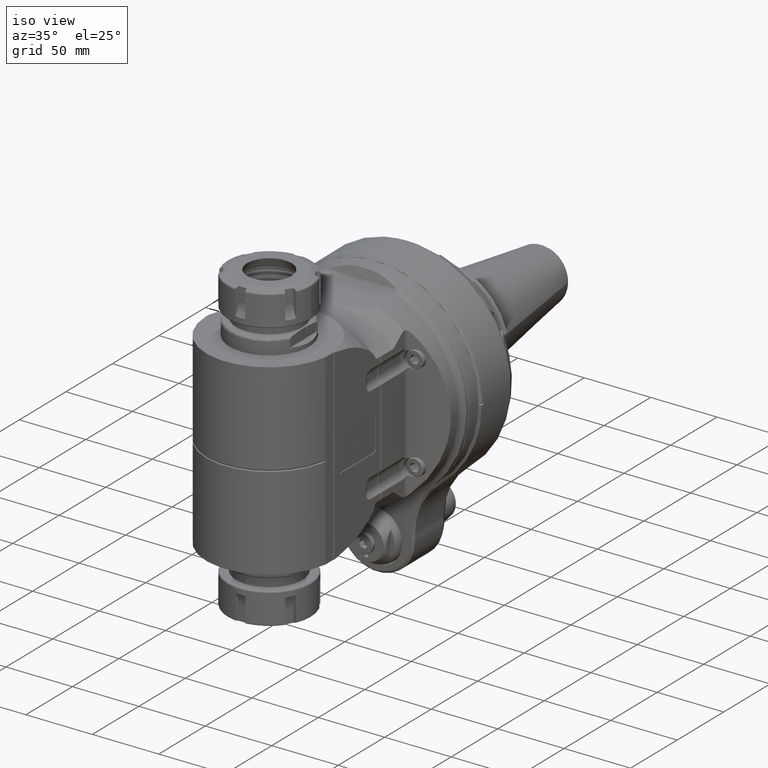
[diagram: clean part render]
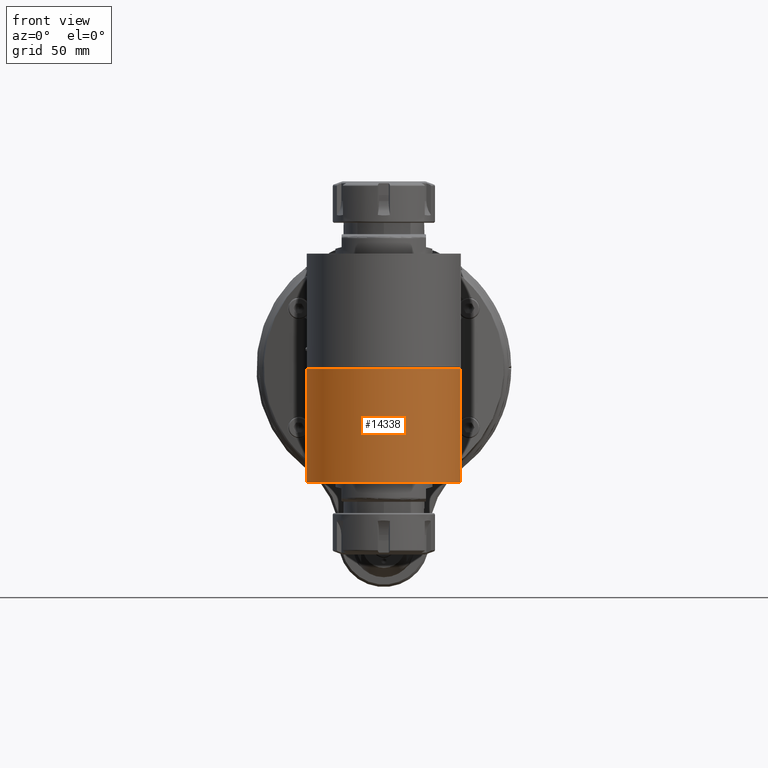
[diagram: tour spotlight — one face highlighted and labeled with its STEP entity id]
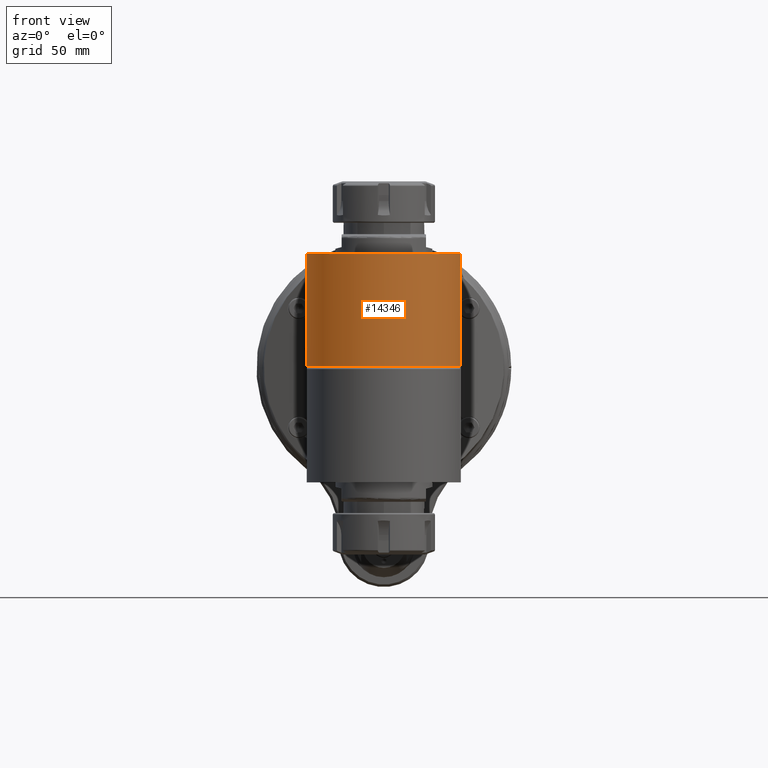
[diagram: tour spotlight — one face highlighted and labeled with its STEP entity id]
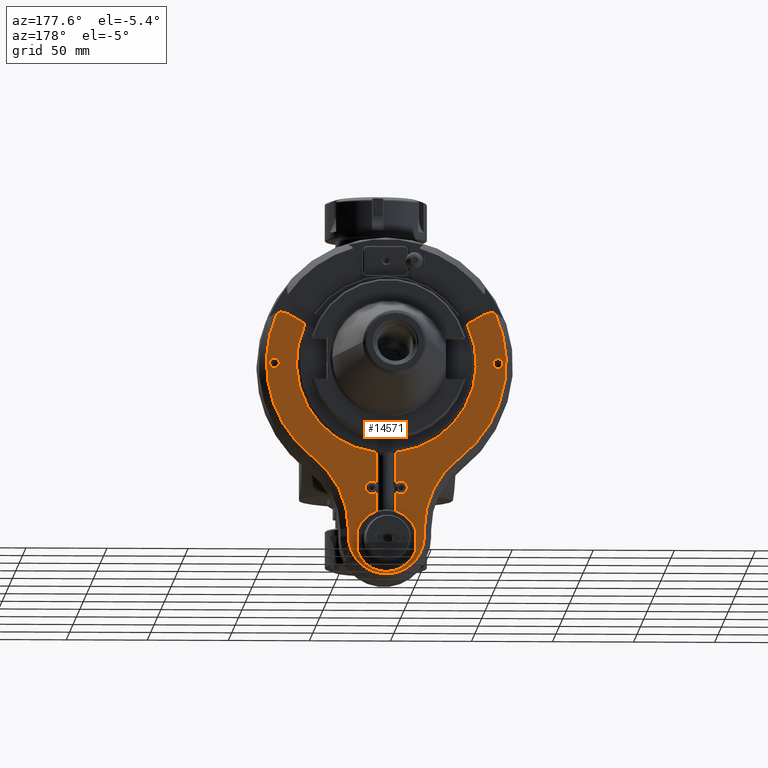
[diagram: tour spotlight — one face highlighted and labeled with its STEP entity id]
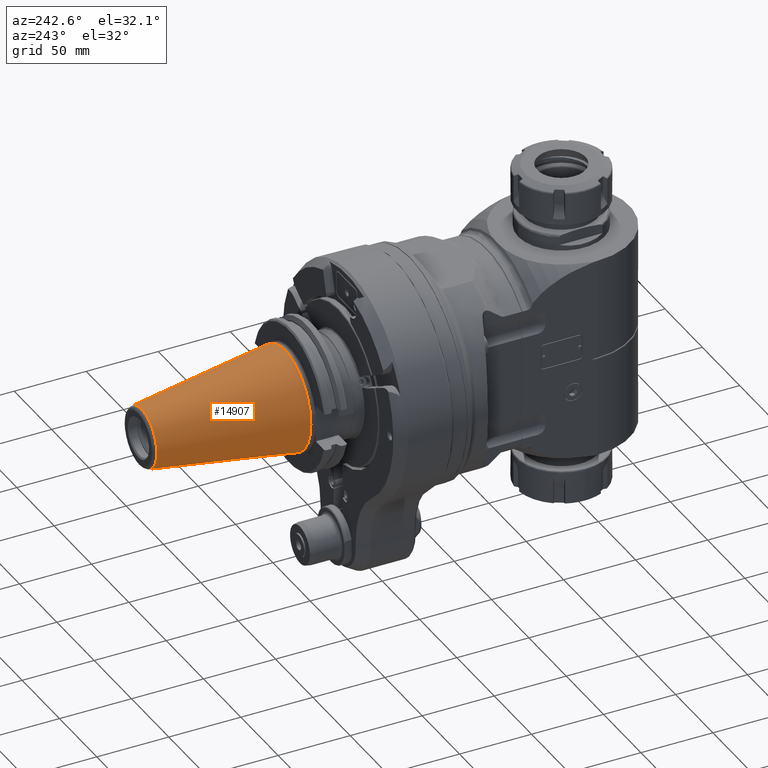
[diagram: tour spotlight — one face highlighted and labeled with its STEP entity id]
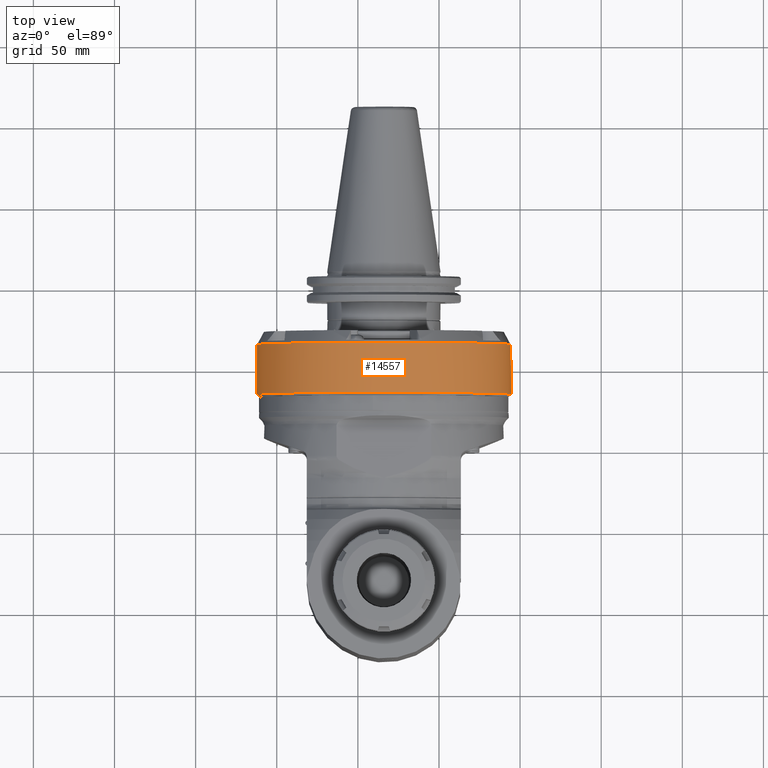
[diagram: tour spotlight — one face highlighted and labeled with its STEP entity id]
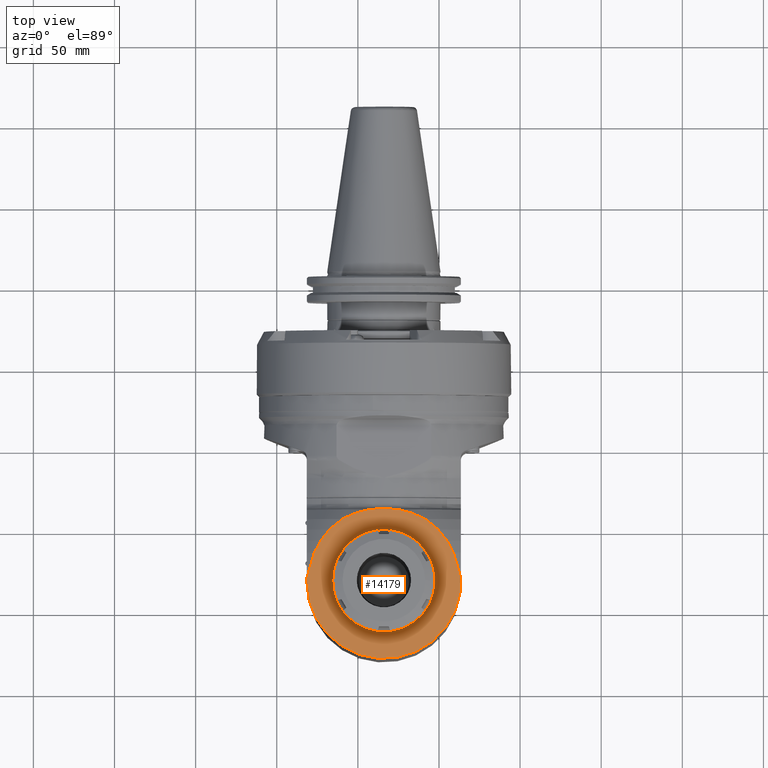
[diagram: tour spotlight — one face highlighted and labeled with its STEP entity id]
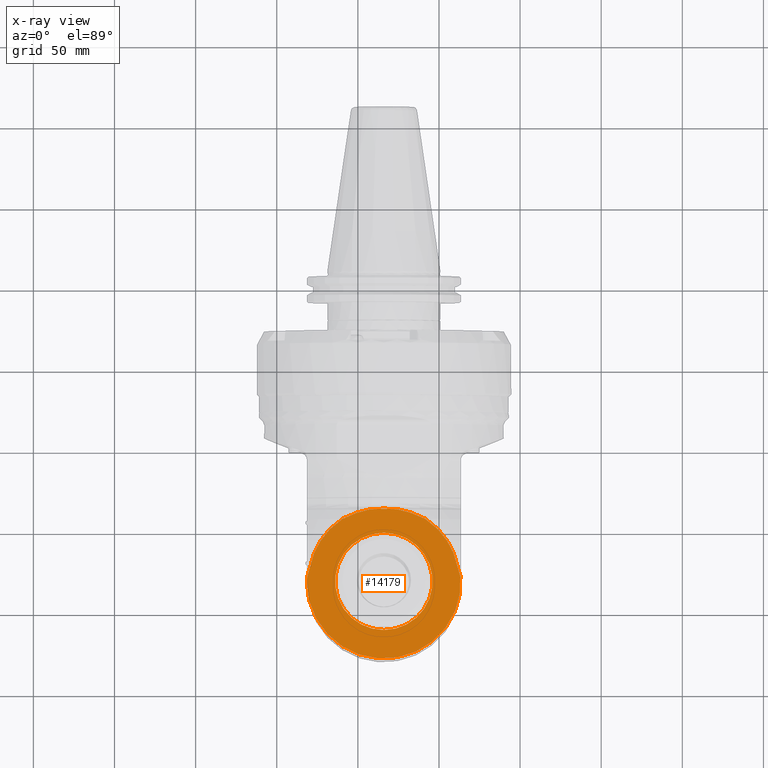
[diagram: x-ray of the same camera — body ghosted, this tour face saturated]
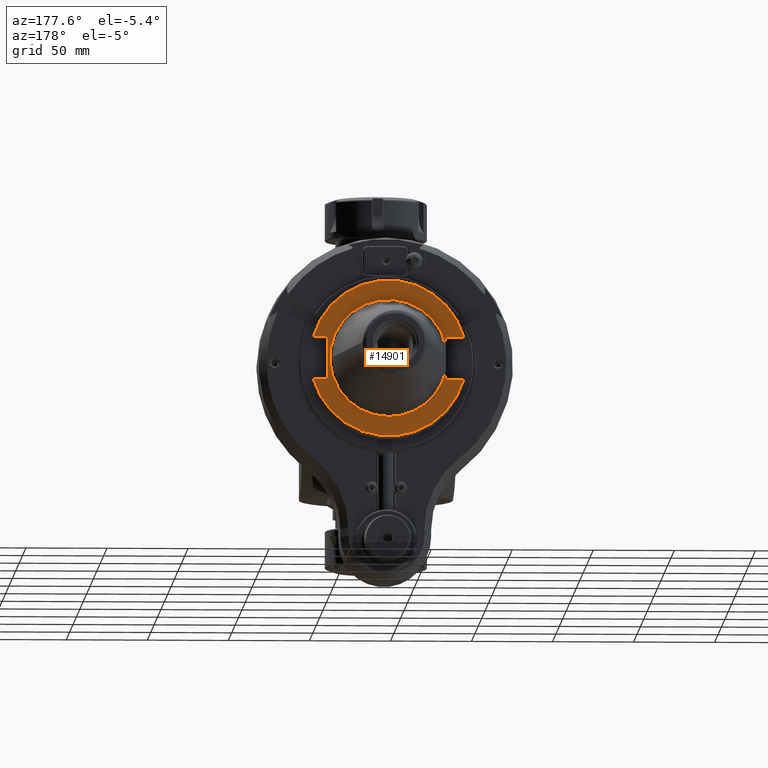
[diagram: tour spotlight — one face highlighted and labeled with its STEP entity id]
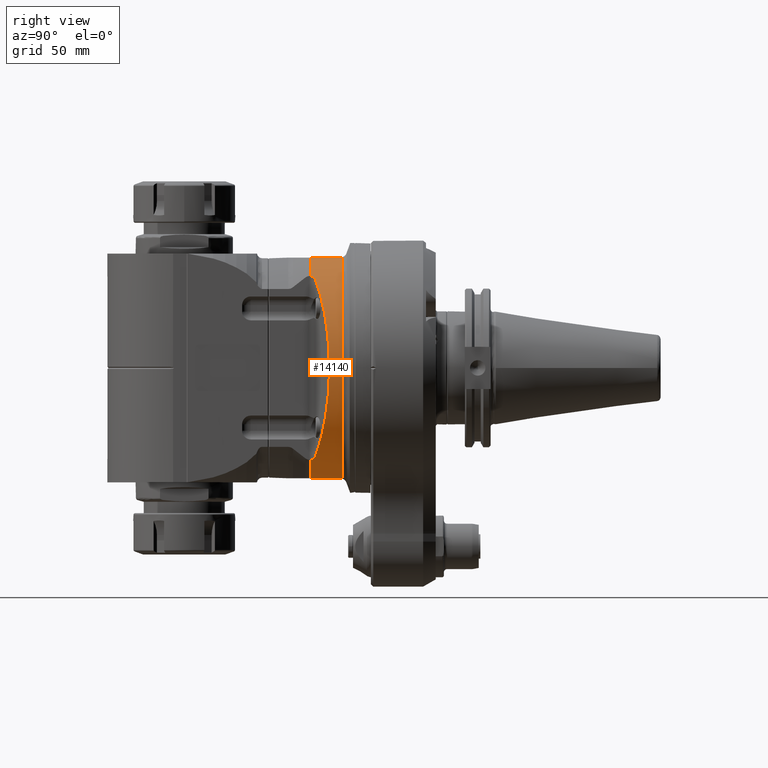
[diagram: tour spotlight — one face highlighted and labeled with its STEP entity id]
A machine part: a face-by-face anatomy tour. The part has 881 B-rep faces; the first image is the clean iso view, then the 8 largest visible faces are spotlighted one at a time (largest first), each with its STEP entity span.

Face 1 — front view, entity #14338. In plain terms, the highlighted cylindrical surface (partial cylindrical patch) has radius 47.5 mm, axis along (-0, 0, -1).
Definition (entity closure, byte-faithful):
#507=B_SPLINE_CURVE_WITH_KNOTS('',3,(#23251,#23252,#23253,#23254),
 .UNSPECIFIED.,.F.,.F.,(4,4),(-2.38850379498311,-2.15803013913804),
 .UNSPECIFIED.);
#770=LINE('',#22116,#1741);
#783=LINE('',#22282,#1754);
#1741=VECTOR('',#17117,69.83431457827);
#1754=VECTOR('',#17166,70.08908305217);
#2698=CYLINDRICAL_SURFACE('',#15456,47.5);
#3199=FACE_OUTER_BOUND('',#4094,.T.);
#4094=EDGE_LOOP('',(#10414,#10415,#10416,#10417,#10418));
#4898=CIRCLE('',#15191,47.5);
#5004=CIRCLE('',#15457,47.5);
#5816=VERTEX_POINT('',#22113);
#5817=VERTEX_POINT('',#22115);
#5857=VERTEX_POINT('',#22279);
#5858=VERTEX_POINT('',#22281);
#6040=VERTEX_POINT('',#23250);
#7283=EDGE_CURVE('',#5817,#5816,#770,.T.);
#7330=EDGE_CURVE('',#5857,#5858,#783,.T.);
#7334=EDGE_CURVE('',#5858,#5816,#4898,.T.);
#7662=EDGE_CURVE('',#5857,#6040,#507,.T.);
#7663=EDGE_CURVE('',#5817,#6040,#5004,.T.);
#10414=ORIENTED_EDGE('',*,*,#7662,.T.);
#10415=ORIENTED_EDGE('',*,*,#7663,.F.);
#10416=ORIENTED_EDGE('',*,*,#7283,.T.);
#10417=ORIENTED_EDGE('',*,*,#7334,.F.);
#10418=ORIENTED_EDGE('',*,*,#7330,.F.);
#14338=ADVANCED_FACE('',(#3199),#2698,.T.);
#15191=AXIS2_PLACEMENT_3D('',#22293,#17170,#17171);
#15456=AXIS2_PLACEMENT_3D('',#23249,#17831,#17832);
#15457=AXIS2_PLACEMENT_3D('',#23255,#17833,#17834);
#17117=DIRECTION('',(-1.985751413415E-8,1.,1.546166241288E-9));
#17166=DIRECTION('',(3.703892881657E-8,0.999999999999999,-1.396245589267E-9));
#17170=DIRECTION('center_axis',(0.,1.,4.660711712401E-9));
#17171=DIRECTION('ref_axis',(0.144712963981007,-4.61165155687221E-9,0.98947367729305));
#17831=DIRECTION('center_axis',(0.,1.,4.660711712401E-9));
#17832=DIRECTION('ref_axis',(0.997364948808858,3.38123597485061E-10,-0.0725476318531776));
#17833=DIRECTION('center_axis',(0.,-1.,-4.660711712401E-9));
#17834=DIRECTION('ref_axis',(1.,0.,0.));
#22113=CARTESIAN_POINT('',(92.99999861249,70.5000002213848,-47.4999998359352));
#22115=CARTESIAN_POINT('',(92.9999999995228,0.665685643099187,-47.4999999984496));
#22116=CARTESIAN_POINT('',(92.99999999922,0.6656856431145,-47.49999999845));
#22279=CARTESIAN_POINT('',(99.8738628151798,0.410916359939769,47.0000002050951));
#22281=CARTESIAN_POINT('',(99.87386541836,70.4999997809483,47.0000000543333));
#22282=CARTESIAN_POINT('',(99.87386282081,0.4109167287789,47.00000015231));
#22293=CARTESIAN_POINT('Origin',(93.,70.5,3.285801757243E-7));
#23249=CARTESIAN_POINT('Origin',(93.,-84.6000024,-3.942962220548E-7));
#23250=CARTESIAN_POINT('',(102.0634272834,0.665685202831,46.62729121627));
#23251=CARTESIAN_POINT('Ctrl Pts',(99.8738628267524,0.410916246678304,47.0000001065853));
#23252=CARTESIAN_POINT('Ctrl Pts',(100.581915363526,0.573329281663454,46.8964457243406));
#23253=CARTESIAN_POINT('Ctrl Pts',(101.309296528955,0.665685197364738,46.7738793837824));
#23254=CARTESIAN_POINT('Ctrl Pts',(102.063427180433,0.665685202833321,46.6272912362955));
#23255=CARTESIAN_POINT('Origin',(93.,0.6656854201474,3.102567834455E-9));

Face 2 — front view, entity #14346. In plain terms, the highlighted cylindrical surface (partial cylindrical patch) has radius 47.5 mm, axis along (-0, 0, -1).
Definition (entity closure, byte-faithful):
#508=B_SPLINE_CURVE_WITH_KNOTS('',3,(#23285,#23286,#23287,#23288),
 .UNSPECIFIED.,.F.,.F.,(4,4),(-2.15803045410682,-1.92755671260695),
 .UNSPECIFIED.);
#771=LINE('',#22145,#1742);
#782=LINE('',#22256,#1753);
#1742=VECTOR('',#17118,69.83431457183);
#1753=VECTOR('',#17161,70.08908321117);
#2699=CYLINDRICAL_SURFACE('',#15475,47.5);
#3207=FACE_OUTER_BOUND('',#4102,.T.);
#4102=EDGE_LOOP('',(#10448,#10449,#10450,#10451,#10452));
#4894=CIRCLE('',#15184,47.5);
#5012=CIRCLE('',#15469,47.5);
#5820=VERTEX_POINT('',#22140);
#5821=VERTEX_POINT('',#22144);
#5850=VERTEX_POINT('',#22243);
#5854=VERTEX_POINT('',#22255);
#6047=VERTEX_POINT('',#23275);
#7287=EDGE_CURVE('',#5821,#5820,#771,.T.);
#7320=EDGE_CURVE('',#5821,#5850,#4894,.T.);
#7326=EDGE_CURVE('',#5850,#5854,#782,.T.);
#7674=EDGE_CURVE('',#6047,#5820,#5012,.T.);
#7678=EDGE_CURVE('',#6047,#5854,#508,.T.);
#10448=ORIENTED_EDGE('',*,*,#7326,.F.);
#10449=ORIENTED_EDGE('',*,*,#7320,.F.);
#10450=ORIENTED_EDGE('',*,*,#7287,.T.);
#10451=ORIENTED_EDGE('',*,*,#7674,.F.);
#10452=ORIENTED_EDGE('',*,*,#7678,.T.);
#14346=ADVANCED_FACE('',(#3207),#2699,.T.);
#15184=AXIS2_PLACEMENT_3D('',#22244,#17149,#17150);
#15469=AXIS2_PLACEMENT_3D('',#23277,#17860,#17861);
#15475=AXIS2_PLACEMENT_3D('',#23284,#17873,#17874);
#17118=DIRECTION('',(-1.984956993891E-8,1.,1.546167157153E-9));
#17149=DIRECTION('center_axis',(0.,-1.,-4.660711712401E-9));
#17150=DIRECTION('ref_axis',(8.76323060526197E-8,4.66071171240098E-9,-0.999999999999996));
#17161=DIRECTION('',(5.451089970912E-9,1.,4.503376780143E-9));
#17860=DIRECTION('center_axis',(0.,1.,4.660711712401E-9));
#17861=DIRECTION('ref_axis',(0.190808995312406,-4.57508131116384E-9,0.981627183460131));
#17873=DIRECTION('center_axis',(0.,1.,4.660711712401E-9));
#17874=DIRECTION('ref_axis',(0.99736495075519,3.38123472775379E-10,-0.0725476050955299));
#22140=CARTESIAN_POINT('',(93.0000000010996,-0.66568520680064,-47.5000000015515));
#22144=CARTESIAN_POINT('',(93.00000138751,-70.4999997786152,-47.5000001640647));
#22145=CARTESIAN_POINT('',(93.00000138751,-70.49999977862,-47.50000010953));
#22243=CARTESIAN_POINT('',(99.8738616665059,-70.5000002190517,46.9999999456695));
#22244=CARTESIAN_POINT('Origin',(93.,-70.5,-3.285801757243E-7));
#22255=CARTESIAN_POINT('',(99.8738620497116,-0.410916619838914,47.0000003179017));
#22256=CARTESIAN_POINT('',(99.87386166803,-70.50000021905,46.99999994556));
#23275=CARTESIAN_POINT('',(102.0634272773,-0.6656856470674,46.62729121125));
#23277=CARTESIAN_POINT('Origin',(93.,-0.6656854297511,-3.102567879216E-9));
#23284=CARTESIAN_POINT('Origin',(93.,-84.6000024,-3.942962220548E-7));
#23285=CARTESIAN_POINT('Ctrl Pts',(102.063427380333,-0.665685647074242,
46.6272911912337));
#23286=CARTESIAN_POINT('Ctrl Pts',(101.309296380223,-0.665685644125785,
46.7738794081137));
#23287=CARTESIAN_POINT('Ctrl Pts',(100.581914897645,-0.57332966201417,46.8964457988952));
#23288=CARTESIAN_POINT('Ctrl Pts',(99.8738620623035,-0.410916499051298,
47.0000002145574));

Face 3 — auxiliary view, entity #14571. In plain terms, the highlighted planar face has unit normal (0, 1, 0).
Definition (entity closure, byte-faithful):
#1118=LINE('',#24867,#2089);
#1121=LINE('',#25041,#2092);
#1122=LINE('',#25045,#2093);
#1123=LINE('',#25049,#2094);
#1124=LINE('',#25051,#2095);
#1125=LINE('',#25055,#2096);
#1126=LINE('',#25057,#2097);
#1127=LINE('',#25065,#2098);
#1128=LINE('',#25070,#2099);
#1129=LINE('',#25075,#2100);
#1130=LINE('',#25083,#2101);
#1131=LINE('',#25085,#2102);
#1132=LINE('',#25089,#2103);
#1133=LINE('',#25090,#2104);
#2089=VECTOR('',#19023,4.881197856107);
#2092=VECTOR('',#19050,12.1655250606);
#2093=VECTOR('',#19053,12.1655250606);
#2094=VECTOR('',#19056,11.97224362268);
#2095=VECTOR('',#19057,0.3542486889354);
#2096=VECTOR('',#19060,0.3542486889354);
#2097=VECTOR('',#19061,17.93530522691);
#2098=VECTOR('',#19068,10.7757564486296);
#2099=VECTOR('',#19073,4.881197579669);
#2100=VECTOR('',#19078,10.7757564486296);
#2101=VECTOR('',#19085,17.93530522691);
#2102=VECTOR('',#19086,0.3542486889354);
#2103=VECTOR('',#19089,0.3542486889354);
#2104=VECTOR('',#19090,11.97224362268);
#2937=FACE_BOUND('',#4363,.T.);
#2938=FACE_BOUND('',#4364,.T.);
#3432=FACE_OUTER_BOUND('',#4362,.T.);
#4362=EDGE_LOOP('',(#11516,#11517,#11518,#11519,#11520,#11521,#11522,#11523,
#11524,#11525,#11526,#11527,#11528,#11529,#11530,#11531,#11532,#11533,#11534,
#11535,#11536,#11537,#11538,#11539,#11540,#11541,#11542,#11543,#11544,#11545,
#11546,#11547));
#4363=EDGE_LOOP('',(#11548));
#4364=EDGE_LOOP('',(#11549));
#5239=CIRCLE('',#15952,54.5);
#5240=CIRCLE('',#15954,74.);
#5246=CIRCLE('',#15960,74.);
#5247=CIRCLE('',#15962,19.);
#5248=CIRCLE('',#15963,19.);
#5249=CIRCLE('',#15964,19.);
#5250=CIRCLE('',#15965,4.);
#5251=CIRCLE('',#15966,1.);
#5252=CIRCLE('',#15967,55.5);
#5253=CIRCLE('',#15968,1.);
#5254=CIRCLE('',#15969,10.);
#5255=CIRCLE('',#15970,23.5);
#5256=CIRCLE('',#15971,54.5);
#5257=CIRCLE('',#15972,10.);
#5258=CIRCLE('',#15973,1.);
#5259=CIRCLE('',#15974,55.5);
#5260=CIRCLE('',#15975,1.);
#5261=CIRCLE('',#15976,4.);
#5262=CIRCLE('',#15977,3.);
#5263=CIRCLE('',#15978,3.);
#6381=VERTEX_POINT('',#24863);
#6382=VERTEX_POINT('',#24865);
#6383=VERTEX_POINT('',#24869);
#6384=VERTEX_POINT('',#24873);
#6395=VERTEX_POINT('',#25024);
#6396=VERTEX_POINT('',#25033);
#6397=VERTEX_POINT('',#25037);
#6398=VERTEX_POINT('',#25038);
#6399=VERTEX_POINT('',#25040);
#6400=VERTEX_POINT('',#25042);
#6401=VERTEX_POINT('',#25044);
#6402=VERTEX_POINT('',#25046);
#6403=VERTEX_POINT('',#25048);
#6404=VERTEX_POINT('',#25050);
#6405=VERTEX_POINT('',#25052);
#6406=VERTEX_POINT('',#25054);
#6407=VERTEX_POINT('',#25056);
#6408=VERTEX_POINT('',#25058);
#6409=VERTEX_POINT('',#25060);
#6410=VERTEX_POINT('',#25062);
#6411=VERTEX_POINT('',#25064);
#6412=VERTEX_POINT('',#25067);
#6413=VERTEX_POINT('',#25069);
#6414=VERTEX_POINT('',#25072);
#6415=VERTEX_POINT('',#25074);
#6416=VERTEX_POINT('',#25076);
#6417=VERTEX_POINT('',#25078);
#6418=VERTEX_POINT('',#25080);
#6419=VERTEX_POINT('',#25082);
#6420=VERTEX_POINT('',#25084);
#6421=VERTEX_POINT('',#25086);
#6422=VERTEX_POINT('',#25088);
#6423=VERTEX_POINT('',#25091);
#6424=VERTEX_POINT('',#25093);
#8199=EDGE_CURVE('',#6382,#6381,#1118,.T.);
#8200=EDGE_CURVE('',#6383,#6381,#5239,.T.);
#8202=EDGE_CURVE('',#6384,#6383,#5240,.T.);
#8214=EDGE_CURVE('',#6396,#6395,#5246,.T.);
#8216=EDGE_CURVE('',#6397,#6398,#5247,.T.);
#8217=EDGE_CURVE('',#6399,#6397,#1121,.T.);
#8218=EDGE_CURVE('',#6400,#6399,#5248,.T.);
#8219=EDGE_CURVE('',#6401,#6400,#1122,.T.);
#8220=EDGE_CURVE('',#6402,#6401,#5249,.T.);
#8221=EDGE_CURVE('',#6403,#6402,#1123,.T.);
#8222=EDGE_CURVE('',#6404,#6403,#1124,.T.);
#8223=EDGE_CURVE('',#6404,#6405,#5250,.T.);
#8224=EDGE_CURVE('',#6406,#6405,#1125,.T.);
#8225=EDGE_CURVE('',#6407,#6406,#1126,.T.);
#8226=EDGE_CURVE('',#6407,#6408,#5251,.T.);
#8227=EDGE_CURVE('',#6408,#6409,#5252,.T.);
#8228=EDGE_CURVE('',#6409,#6410,#5253,.T.);
#8229=EDGE_CURVE('',#6410,#6411,#1127,.T.);
#8230=EDGE_CURVE('',#6411,#6384,#5254,.T.);
#8231=EDGE_CURVE('',#6382,#6412,#5255,.T.);
#8232=EDGE_CURVE('',#6413,#6412,#1128,.T.);
#8233=EDGE_CURVE('',#6413,#6396,#5256,.T.);
#8234=EDGE_CURVE('',#6395,#6414,#5257,.T.);
#8235=EDGE_CURVE('',#6414,#6415,#1129,.T.);
#8236=EDGE_CURVE('',#6415,#6416,#5258,.T.);
#8237=EDGE_CURVE('',#6416,#6417,#5259,.T.);
#8238=EDGE_CURVE('',#6417,#6418,#5260,.T.);
#8239=EDGE_CURVE('',#6419,#6418,#1130,.T.);
#8240=EDGE_CURVE('',#6420,#6419,#1131,.T.);
#8241=EDGE_CURVE('',#6420,#6421,#5261,.T.);
#8242=EDGE_CURVE('',#6422,#6421,#1132,.T.);
#8243=EDGE_CURVE('',#6398,#6422,#1133,.T.);
#8244=EDGE_CURVE('',#6423,#6423,#5262,.T.);
#8245=EDGE_CURVE('',#6424,#6424,#5263,.T.);
#11516=ORIENTED_EDGE('',*,*,#8216,.F.);
#11517=ORIENTED_EDGE('',*,*,#8217,.F.);
#11518=ORIENTED_EDGE('',*,*,#8218,.F.);
#11519=ORIENTED_EDGE('',*,*,#8219,.F.);
#11520=ORIENTED_EDGE('',*,*,#8220,.F.);
#11521=ORIENTED_EDGE('',*,*,#8221,.F.);
#11522=ORIENTED_EDGE('',*,*,#8222,.F.);
#11523=ORIENTED_EDGE('',*,*,#8223,.T.);
#11524=ORIENTED_EDGE('',*,*,#8224,.F.);
#11525=ORIENTED_EDGE('',*,*,#8225,.F.);
#11526=ORIENTED_EDGE('',*,*,#8226,.T.);
#11527=ORIENTED_EDGE('',*,*,#8227,.T.);
#11528=ORIENTED_EDGE('',*,*,#8228,.T.);
#11529=ORIENTED_EDGE('',*,*,#8229,.T.);
#11530=ORIENTED_EDGE('',*,*,#8230,.T.);
#11531=ORIENTED_EDGE('',*,*,#8202,.T.);
#11532=ORIENTED_EDGE('',*,*,#8200,.T.);
#11533=ORIENTED_EDGE('',*,*,#8199,.F.);
#11534=ORIENTED_EDGE('',*,*,#8231,.T.);
#11535=ORIENTED_EDGE('',*,*,#8232,.F.);
#11536=ORIENTED_EDGE('',*,*,#8233,.T.);
#11537=ORIENTED_EDGE('',*,*,#8214,.T.);
#11538=ORIENTED_EDGE('',*,*,#8234,.T.);
#11539=ORIENTED_EDGE('',*,*,#8235,.T.);
#11540=ORIENTED_EDGE('',*,*,#8236,.T.);
#11541=ORIENTED_EDGE('',*,*,#8237,.T.);
#11542=ORIENTED_EDGE('',*,*,#8238,.T.);
#11543=ORIENTED_EDGE('',*,*,#8239,.F.);
#11544=ORIENTED_EDGE('',*,*,#8240,.F.);
#11545=ORIENTED_EDGE('',*,*,#8241,.T.);
#11546=ORIENTED_EDGE('',*,*,#8242,.F.);
#11547=ORIENTED_EDGE('',*,*,#8243,.F.);
#11548=ORIENTED_EDGE('',*,*,#8244,.T.);
#11549=ORIENTED_EDGE('',*,*,#8245,.T.);
#13931=PLANE('',#15961);
#14571=ADVANCED_FACE('',(#3432,#2937,#2938),#13931,.T.);
#15952=AXIS2_PLACEMENT_3D('',#24870,#19026,#19027);
#15954=AXIS2_PLACEMENT_3D('',#24874,#19031,#19032);
#15960=AXIS2_PLACEMENT_3D('',#25034,#19043,#19044);
#15961=AXIS2_PLACEMENT_3D('',#25036,#19046,#19047);
#15962=AXIS2_PLACEMENT_3D('',#25039,#19048,#19049);
#15963=AXIS2_PLACEMENT_3D('',#25043,#19051,#19052);
#15964=AXIS2_PLACEMENT_3D('',#25047,#19054,#19055);
#15965=AXIS2_PLACEMENT_3D('',#25053,#19058,#19059);
#15966=AXIS2_PLACEMENT_3D('',#25059,#19062,#19063);
#15967=AXIS2_PLACEMENT_3D('',#25061,#19064,#19065);
#15968=AXIS2_PLACEMENT_3D('',#25063,#19066,#19067);
#15969=AXIS2_PLACEMENT_3D('',#25066,#19069,#19070);
#15970=AXIS2_PLACEMENT_3D('',#25068,#19071,#19072);
#15971=AXIS2_PLACEMENT_3D('',#25071,#19074,#19075);
#15972=AXIS2_PLACEMENT_3D('',#25073,#19076,#19077);
#15973=AXIS2_PLACEMENT_3D('',#25077,#19079,#19080);
#15974=AXIS2_PLACEMENT_3D('',#25079,#19081,#19082);
#15975=AXIS2_PLACEMENT_3D('',#25081,#19083,#19084);
#15976=AXIS2_PLACEMENT_3D('',#25087,#19087,#19088);
#15977=AXIS2_PLACEMENT_3D('',#25092,#19091,#19092);
#15978=AXIS2_PLACEMENT_3D('',#25094,#19093,#19094);
#19023=DIRECTION('',(0.,0.,1.));
#19026=DIRECTION('center_axis',(0.,-1.,0.));
#19027=DIRECTION('ref_axis',(-0.607003986197201,0.,0.794698786170401));
#19031=DIRECTION('center_axis',(0.,1.,0.));
#19032=DIRECTION('ref_axis',(0.906811127338216,0.,0.421537162460908));
#19043=DIRECTION('center_axis',(0.,1.,0.));
#19044=DIRECTION('ref_axis',(-1.,0.,0.));
#19046=DIRECTION('center_axis',(0.,1.,0.));
#19047=DIRECTION('ref_axis',(1.,0.,0.));
#19048=DIRECTION('center_axis',(0.,1.,0.));
#19049=DIRECTION('ref_axis',(-0.947368421052624,0.,0.320145396331508));
#19050=DIRECTION('',(0.,0.,1.));
#19051=DIRECTION('center_axis',(0.,1.,0.));
#19052=DIRECTION('ref_axis',(0.947368421052624,0.,-0.320145396331508));
#19053=DIRECTION('',(0.,0.,-1.));
#19054=DIRECTION('center_axis',(0.,1.,0.));
#19055=DIRECTION('ref_axis',(0.315789473684213,0.,0.948829283016839));
#19056=DIRECTION('',(0.,0.,-1.));
#19057=DIRECTION('',(-1.,0.,0.));
#19058=DIRECTION('center_axis',(0.,-1.,0.));
#19059=DIRECTION('ref_axis',(-0.661437827766121,0.,-0.750000000000024));
#19060=DIRECTION('',(1.,0.,0.));
#19061=DIRECTION('',(0.,0.,-1.));
#19062=DIRECTION('center_axis',(0.,1.,0.));
#19063=DIRECTION('ref_axis',(-1.,0.,1.847411112976E-13));
#19064=DIRECTION('center_axis',(0.,-1.,0.));
#19065=DIRECTION('ref_axis',(0.1238938053097,0.,-0.992295482709602));
#19066=DIRECTION('center_axis',(0.,1.,0.));
#19067=DIRECTION('ref_axis',(-0.906875401285755,0.,-0.421398868701379));
#19068=DIRECTION('',(0.866025403784429,0.,0.500000000000017));
#19069=DIRECTION('center_axis',(0.,1.,0.));
#19070=DIRECTION('ref_axis',(-0.500000000000017,0.,0.866025403784429));
#19071=DIRECTION('center_axis',(0.,1.,0.));
#19072=DIRECTION('ref_axis',(1.,0.,-1.691816948473E-8));
#19073=DIRECTION('',(0.,0.,-1.));
#19074=DIRECTION('center_axis',(0.,-1.,0.));
#19075=DIRECTION('ref_axis',(1.,0.,1.462785203872E-8));
#19076=DIRECTION('center_axis',(0.,1.,0.));
#19077=DIRECTION('ref_axis',(-0.203348442087891,0.,0.979106435021457));
#19078=DIRECTION('',(0.866025403784429,0.,-0.500000000000017));
#19079=DIRECTION('center_axis',(0.,1.,0.));
#19080=DIRECTION('ref_axis',(0.499999999999899,0.,0.866025403784497));
#19081=DIRECTION('center_axis',(0.,-1.,0.));
#19082=DIRECTION('ref_axis',(-0.90687540128566,0.,0.421398868701581));
#19083=DIRECTION('center_axis',(0.,1.,0.));
#19084=DIRECTION('ref_axis',(0.123893805309405,0.,0.992295482709639));
#19085=DIRECTION('',(0.,0.,1.));
#19086=DIRECTION('',(1.,0.,0.));
#19087=DIRECTION('center_axis',(0.,-1.,0.));
#19088=DIRECTION('ref_axis',(0.661437827766121,0.,0.750000000000024));
#19089=DIRECTION('',(-1.,0.,0.));
#19090=DIRECTION('',(0.,0.,1.));
#19091=DIRECTION('center_axis',(0.,-1.,0.));
#19092=DIRECTION('ref_axis',(-1.,0.,0.));
#19093=DIRECTION('center_axis',(0.,-1.,0.));
#19094=DIRECTION('ref_axis',(-1.,0.,0.));
#24863=CARTESIAN_POINT('',(23.5,0.,-102.1188025415));
#24865=CARTESIAN_POINT('',(23.5,3.552713678801E-14,-107.0000003976));
#24867=CARTESIAN_POINT('',(23.5,0.,-107.0000003976));
#24869=CARTESIAN_POINT('',(44.9182862573303,2.28276776000532E-8,-58.8077168878181));
#24870=CARTESIAN_POINT('Origin',(78.,-4.263256414561E-14,-102.1188033616));
#24873=CARTESIAN_POINT('',(67.10402342303,0.,31.19375002211));
#24874=CARTESIAN_POINT('Origin',(0.,-1.136868377216E-13,0.));
#25024=CARTESIAN_POINT('',(-67.10402342302,0.,31.19375002211));
#25033=CARTESIAN_POINT('',(-44.9182866299284,1.75849896126105E-8,-58.8077165917949));
#25034=CARTESIAN_POINT('Origin',(0.,0.,0.));
#25036=CARTESIAN_POINT('Origin',(7.105428357601E-14,0.,75.575));
#25037=CARTESIAN_POINT('',(-18.,0.,-103.9172374697));
#25038=CARTESIAN_POINT('',(-6.,0.,-91.97224362268));
#25039=CARTESIAN_POINT('Origin',(0.,0.,-110.));
#25040=CARTESIAN_POINT('',(-18.,0.,-116.0827625303));
#25041=CARTESIAN_POINT('',(-18.,0.,-116.0827625303));
#25042=CARTESIAN_POINT('',(18.,0.,-116.0827625303));
#25043=CARTESIAN_POINT('Origin',(0.,0.,-110.));
#25044=CARTESIAN_POINT('',(18.,0.,-103.9172374697));
#25045=CARTESIAN_POINT('',(18.,0.,-103.9172374697));
#25046=CARTESIAN_POINT('',(6.,0.,-91.97224362268));
#25047=CARTESIAN_POINT('Origin',(0.,0.,-110.));
#25048=CARTESIAN_POINT('',(6.,0.,-80.));
#25049=CARTESIAN_POINT('',(6.,0.,-80.));
#25050=CARTESIAN_POINT('',(6.354248688935,0.,-80.));
#25051=CARTESIAN_POINT('',(6.354248688935,0.,-80.));
#25052=CARTESIAN_POINT('',(6.354248688935,0.,-74.));
#25053=CARTESIAN_POINT('Origin',(9.,0.,-77.));
#25054=CARTESIAN_POINT('',(6.,0.,-74.));
#25055=CARTESIAN_POINT('',(6.,0.,-74.));
#25056=CARTESIAN_POINT('',(6.,0.,-56.06469477309));
#25057=CARTESIAN_POINT('',(6.,0.,-56.06469477309));
#25058=CARTESIAN_POINT('',(6.87610619469,0.,-55.07239929038));
#25059=CARTESIAN_POINT('Origin',(7.,0.,-56.06469477309));
#25060=CARTESIAN_POINT('',(50.33158477135,0.,23.38763721294));
#25061=CARTESIAN_POINT('Origin',(0.,0.,0.));
#25062=CARTESIAN_POINT('',(50.73846017264,0.,24.67506148542));
#25063=CARTESIAN_POINT('Origin',(51.23846017264,0.,23.80903608164));
#25064=CARTESIAN_POINT('',(60.07053900215,0.,30.06293970974));
#25065=CARTESIAN_POINT('',(50.73846017264,0.,24.67506148542));
#25066=CARTESIAN_POINT('Origin',(65.07053900215,0.,21.40268567189));
#25067=CARTESIAN_POINT('',(-23.5,0.,-107.0000001325));
#25068=CARTESIAN_POINT('Origin',(0.,3.552713678801E-14,-107.));
#25069=CARTESIAN_POINT('',(-23.5,-2.07220032434565E-14,-102.118802554414));
#25070=CARTESIAN_POINT('',(-23.5,0.,-102.1188025529));
#25071=CARTESIAN_POINT('Origin',(-78.,-4.263256414561E-14,-102.1188033616));
#25072=CARTESIAN_POINT('',(-60.07053900215,0.,30.06293970974));
#25073=CARTESIAN_POINT('Origin',(-65.07053900215,0.,21.40268567189));
#25074=CARTESIAN_POINT('',(-50.73846017264,0.,24.67506148542));
#25075=CARTESIAN_POINT('',(-60.07053900215,0.,30.06293970974));
#25076=CARTESIAN_POINT('',(-50.33158477135,0.,23.38763721294));
#25077=CARTESIAN_POINT('Origin',(-51.23846017264,0.,23.80903608164));
#25078=CARTESIAN_POINT('',(-6.87610619469,0.,-55.07239929038));
#25079=CARTESIAN_POINT('Origin',(0.,0.,0.));
#25080=CARTESIAN_POINT('',(-6.,0.,-56.06469477309));
#25081=CARTESIAN_POINT('Origin',(-7.,0.,-56.06469477309));
#25082=CARTESIAN_POINT('',(-6.,0.,-74.));
#25083=CARTESIAN_POINT('',(-6.,0.,-74.));
#25084=CARTESIAN_POINT('',(-6.354248688935,0.,-74.));
#25085=CARTESIAN_POINT('',(-6.354248688935,0.,-74.));
#25086=CARTESIAN_POINT('',(-6.354248688935,0.,-80.));
#25087=CARTESIAN_POINT('Origin',(-9.,0.,-77.));
#25088=CARTESIAN_POINT('',(-6.,0.,-80.));
#25089=CARTESIAN_POINT('',(-6.,0.,-80.));
#25090=CARTESIAN_POINT('',(-6.,0.,-91.97224362268));
#25091=CARTESIAN_POINT('',(66.,0.,0.));
#25092=CARTESIAN_POINT('Origin',(69.,0.,0.));
#25093=CARTESIAN_POINT('',(-72.,0.,0.));
#25094=CARTESIAN_POINT('Origin',(-69.,0.,0.));

Face 4 — auxiliary view, entity #14907. In plain terms, the highlighted conical surface has half-angle 8.297 deg.
Definition (entity closure, byte-faithful):
#356=CONICAL_SURFACE('',#16654,27.67265681028,0.144812411498922);
#1582=LINE('',#28455,#2553);
#2553=VECTOR('',#20895,27.67265681028);
#3768=FACE_OUTER_BOUND('',#4734,.T.);
#4734=EDGE_LOOP('',(#13299,#13300,#13301,#13302,#13303,#13304));
#5601=CIRCLE('',#16652,34.925);
#5602=CIRCLE('',#16653,34.925);
#5603=CIRCLE('',#16655,20.42031362057);
#5604=CIRCLE('',#16656,20.42031362057);
#6967=VERTEX_POINT('',#28448);
#6968=VERTEX_POINT('',#28449);
#6969=VERTEX_POINT('',#28454);
#6970=VERTEX_POINT('',#28456);
#9103=EDGE_CURVE('',#6967,#6968,#5601,.T.);
#9105=EDGE_CURVE('',#6968,#6967,#5602,.T.);
#9106=EDGE_CURVE('',#6967,#6969,#1582,.T.);
#9107=EDGE_CURVE('',#6970,#6969,#5603,.T.);
#9108=EDGE_CURVE('',#6969,#6970,#5604,.T.);
#13299=ORIENTED_EDGE('',*,*,#9103,.F.);
#13300=ORIENTED_EDGE('',*,*,#9106,.T.);
#13301=ORIENTED_EDGE('',*,*,#9107,.F.);
#13302=ORIENTED_EDGE('',*,*,#9108,.F.);
#13303=ORIENTED_EDGE('',*,*,#9106,.F.);
#13304=ORIENTED_EDGE('',*,*,#9105,.F.);
#14907=ADVANCED_FACE('',(#3768),#356,.T.);
#16652=AXIS2_PLACEMENT_3D('',#28450,#20888,#20889);
#16653=AXIS2_PLACEMENT_3D('',#28452,#20891,#20892);
#16654=AXIS2_PLACEMENT_3D('',#28453,#20893,#20894);
#16655=AXIS2_PLACEMENT_3D('',#28457,#20896,#20897);
#16656=AXIS2_PLACEMENT_3D('',#28458,#20898,#20899);
#20888=DIRECTION('center_axis',(0.,-1.,0.));
#20889=DIRECTION('ref_axis',(-1.,0.,0.));
#20891=DIRECTION('center_axis',(0.,-1.,0.));
#20892=DIRECTION('ref_axis',(-1.,0.,0.));
#20893=DIRECTION('center_axis',(0.,-1.,0.));
#20894=DIRECTION('ref_axis',(-1.,0.,0.));
#20895=DIRECTION('',(-0.144306807239621,0.98953299358046,-1.76724869581176E-17));
#20896=DIRECTION('center_axis',(0.,1.,0.));
#20897=DIRECTION('ref_axis',(-1.,0.,0.));
#20898=DIRECTION('center_axis',(0.,1.,0.));
#20899=DIRECTION('ref_axis',(-1.,0.,0.));
#28448=CARTESIAN_POINT('',(34.925,37.,0.));
#28449=CARTESIAN_POINT('',(-34.9250000000004,36.9999999999999,4.27707894602218E-15));
#28450=CARTESIAN_POINT('Origin',(0.,37.,0.));
#28452=CARTESIAN_POINT('Origin',(0.,37.,0.));
#28453=CARTESIAN_POINT('Origin',(0.,86.73038350905,0.));
#28454=CARTESIAN_POINT('',(20.4203136205638,136.460767018099,2.50076717130085E-15));
#28455=CARTESIAN_POINT('',(27.67265681028,86.73038350905,3.38892305866126E-15));
#28456=CARTESIAN_POINT('',(2.50076717130162E-15,136.4607670181,-20.42031362057));
#28457=CARTESIAN_POINT('Origin',(0.,136.4607670181,0.));
#28458=CARTESIAN_POINT('Origin',(0.,136.4607670181,0.));

Face 5 — top view, entity #14557. In plain terms, the highlighted cylindrical surface (partial cylindrical patch) has radius 78.5 mm, axis along (0, 1, 0).
Definition (entity closure, byte-faithful):
#1104=LINE('',#24818,#2075);
#1105=LINE('',#24825,#2076);
#2075=VECTOR('',#18963,30.70577136594);
#2076=VECTOR('',#18970,30.70577136594);
#2756=CYLINDRICAL_SURFACE('',#15928,78.5);
#3418=FACE_OUTER_BOUND('',#4348,.T.);
#4348=EDGE_LOOP('',(#11445,#11446,#11447,#11448,#11449,#11450,#11451));
#5228=CIRCLE('',#15929,78.5);
#5229=CIRCLE('',#15930,78.5);
#5230=CIRCLE('',#15931,78.5);
#5231=CIRCLE('',#15932,314.309852030994);
#5232=CIRCLE('',#15933,314.309851864223);
#6368=VERTEX_POINT('',#24810);
#6370=VERTEX_POINT('',#24816);
#6371=VERTEX_POINT('',#24820);
#6372=VERTEX_POINT('',#24822);
#6373=VERTEX_POINT('',#24824);
#6374=VERTEX_POINT('',#24826);
#6375=VERTEX_POINT('',#24828);
#8174=EDGE_CURVE('',#6368,#6370,#1104,.T.);
#8175=EDGE_CURVE('',#6368,#6371,#5228,.T.);
#8176=EDGE_CURVE('',#6370,#6372,#5229,.T.);
#8177=EDGE_CURVE('',#6373,#6372,#1105,.T.);
#8178=EDGE_CURVE('',#6374,#6373,#5230,.T.);
#8179=EDGE_CURVE('',#6374,#6375,#5231,.T.);
#8180=EDGE_CURVE('',#6375,#6371,#5232,.T.);
#11445=ORIENTED_EDGE('',*,*,#8175,.F.);
#11446=ORIENTED_EDGE('',*,*,#8174,.T.);
#11447=ORIENTED_EDGE('',*,*,#8176,.T.);
#11448=ORIENTED_EDGE('',*,*,#8177,.F.);
#11449=ORIENTED_EDGE('',*,*,#8178,.F.);
#11450=ORIENTED_EDGE('',*,*,#8179,.T.);
#11451=ORIENTED_EDGE('',*,*,#8180,.T.);
#14557=ADVANCED_FACE('',(#3418),#2756,.T.);
#15928=AXIS2_PLACEMENT_3D('',#24819,#18964,#18965);
#15929=AXIS2_PLACEMENT_3D('',#24821,#18966,#18967);
#15930=AXIS2_PLACEMENT_3D('',#24823,#18968,#18969);
#15931=AXIS2_PLACEMENT_3D('',#24827,#18971,#18972);
#15932=AXIS2_PLACEMENT_3D('',#24829,#18973,#18974);
#15933=AXIS2_PLACEMENT_3D('',#24830,#18975,#18976);
#18963=DIRECTION('',(1.144039942068E-9,1.,8.738359245408E-10));
#18964=DIRECTION('center_axis',(0.,1.,0.));
#18965=DIRECTION('ref_axis',(0.,0.,1.));
#18966=DIRECTION('center_axis',(0.,-1.,0.));
#18967=DIRECTION('ref_axis',(0.607003891050614,0.,-0.794698858844918));
#18968=DIRECTION('center_axis',(0.,-1.,0.));
#18969=DIRECTION('ref_axis',(0.607003891050614,0.,-0.794698858844918));
#18970=DIRECTION('',(-1.144040404876E-9,1.,8.738361559444E-10));
#18971=DIRECTION('center_axis',(0.,-1.,0.));
#18972=DIRECTION('ref_axis',(-1.,0.,0.));
#18973=DIRECTION('center_axis',(-0.61239072995318,0.353547125660486,0.707094069982644));
#18974=DIRECTION('ref_axis',(0.790555243943767,0.27385610959939,0.547745595608123));
#18975=DIRECTION('center_axis',(-0.612390730505155,0.353547125470721,-0.707094069599479));
#18976=DIRECTION('ref_axis',(0.790535907835446,0.267607175544064,-0.550853318062182));
#24810=CARTESIAN_POINT('',(47.64980544747,-38.5,-62.38386041933));
#24816=CARTESIAN_POINT('',(47.6498054820529,-7.79422863406054,-62.3838603929216));
#24818=CARTESIAN_POINT('',(47.64980544747,-38.5,-62.38386041933));
#24819=CARTESIAN_POINT('Origin',(0.,0.,0.));
#24820=CARTESIAN_POINT('',(78.49392260505,-38.50000000002,-0.9767876291806));
#24821=CARTESIAN_POINT('Origin',(0.,-38.5,0.));
#24822=CARTESIAN_POINT('',(-47.6498054826,-7.79422863406,-62.3838603925));
#24823=CARTESIAN_POINT('Origin',(0.,-7.79422863406,0.));
#24824=CARTESIAN_POINT('',(-47.64980544747,-38.5,-62.38386041933));
#24825=CARTESIAN_POINT('',(-47.64980544747,-38.5,-62.38386041933));
#24826=CARTESIAN_POINT('',(78.49392260505,-38.5,0.9767876291598));
#24827=CARTESIAN_POINT('Origin',(0.,-38.5,0.));
#24828=CARTESIAN_POINT('',(78.5,-36.53589838486,-1.42108547152E-14));
#24829=CARTESIAN_POINT('Origin',(-169.979301746292,-122.611571670828,-172.161837106218));
#24830=CARTESIAN_POINT('Origin',(-169.979301480058,-122.611571703085,172.161837169874));

Face 6 — top view, entity #14179. An x-ray twin of the same camera follows (body ghosted, this face saturated) — the face is partly hidden behind the body. In plain terms, the highlighted planar face has unit normal (-0, 0, -1).
Definition (entity closure, byte-faithful):
#85=(
BOUNDED_CURVE()
B_SPLINE_CURVE(2,(#22189,#22190,#22191),.UNSPECIFIED.,.F.,.F.)
B_SPLINE_CURVE_WITH_KNOTS((3,3),(-25.9431547115141,-22.0397558311309),
 .UNSPECIFIED.)
CURVE()
GEOMETRIC_REPRESENTATION_ITEM()
RATIONAL_B_SPLINE_CURVE((2.13794237940712,2.15310474651621,2.13794359123656))
REPRESENTATION_ITEM('')
);
#87=(
BOUNDED_CURVE()
B_SPLINE_CURVE(2,(#22202,#22203,#22204),.UNSPECIFIED.,.F.,.F.)
B_SPLINE_CURVE_WITH_KNOTS((3,3),(16.3002202418855,19.3818852881246),
 .UNSPECIFIED.)
CURVE()
GEOMETRIC_REPRESENTATION_ITEM()
RATIONAL_B_SPLINE_CURVE((1.44314621802843,1.4331235997436,1.40347217915779))
REPRESENTATION_ITEM('')
);
#88=(
BOUNDED_CURVE()
B_SPLINE_CURVE(2,(#22210,#22211,#22212),.UNSPECIFIED.,.F.,.F.)
B_SPLINE_CURVE_WITH_KNOTS((3,3),(-5.26381584446685,-3.56298282553251),
 .UNSPECIFIED.)
CURVE()
GEOMETRIC_REPRESENTATION_ITEM()
RATIONAL_B_SPLINE_CURVE((1.00636832983856,1.00653042857755,1.005922886789))
REPRESENTATION_ITEM('')
);
#89=(
BOUNDED_CURVE()
B_SPLINE_CURVE(2,(#22214,#22215,#22216),.UNSPECIFIED.,.F.,.F.)
B_SPLINE_CURVE_WITH_KNOTS((3,3),(-4.32211007522703,-3.35458598301897),
 .UNSPECIFIED.)
CURVE()
GEOMETRIC_REPRESENTATION_ITEM()
RATIONAL_B_SPLINE_CURVE((1.01735103146184,1.01676815673737,1.01557676509869))
REPRESENTATION_ITEM('')
);
#90=(
BOUNDED_CURVE()
B_SPLINE_CURVE(2,(#22218,#22219,#22220),.UNSPECIFIED.,.F.,.F.)
B_SPLINE_CURVE_WITH_KNOTS((3,3),(-4.09630744237375,-2.99183257733234),
 .UNSPECIFIED.)
CURVE()
GEOMETRIC_REPRESENTATION_ITEM()
RATIONAL_B_SPLINE_CURVE((1.02981990170669,1.02807421302543,1.02510202597109))
REPRESENTATION_ITEM('')
);
#91=(
BOUNDED_CURVE()
B_SPLINE_CURVE(2,(#22222,#22223,#22224),.UNSPECIFIED.,.F.,.F.)
B_SPLINE_CURVE_WITH_KNOTS((3,3),(-3.80736004634249,-2.39513776430956),
 .UNSPECIFIED.)
CURVE()
GEOMETRIC_REPRESENTATION_ITEM()
RATIONAL_B_SPLINE_CURVE((1.04368157965266,1.03916487885148,1.03198908647797))
REPRESENTATION_ITEM('')
);
#92=(
BOUNDED_CURVE()
B_SPLINE_CURVE(2,(#22225,#22226,#22227),.UNSPECIFIED.,.F.,.F.)
B_SPLINE_CURVE_WITH_KNOTS((3,3),(-19.3818852881198,-16.3002069690132),
 .UNSPECIFIED.)
CURVE()
GEOMETRIC_REPRESENTATION_ITEM()
RATIONAL_B_SPLINE_CURVE((1.40347217915788,1.43312372745365,1.44314630436382))
REPRESENTATION_ITEM('')
);
#93=(
BOUNDED_CURVE()
B_SPLINE_CURVE(2,(#22229,#22230,#22231),.UNSPECIFIED.,.F.,.F.)
B_SPLINE_CURVE_WITH_KNOTS((3,3),(-10.0171497225637,-8.60492744048228),
 .UNSPECIFIED.)
CURVE()
GEOMETRIC_REPRESENTATION_ITEM()
RATIONAL_B_SPLINE_CURVE((1.03198908647753,1.03916487885137,1.0436815796527))
REPRESENTATION_ITEM('')
);
#94=(
BOUNDED_CURVE()
B_SPLINE_CURVE(2,(#22233,#22234,#22235),.UNSPECIFIED.,.F.,.F.)
B_SPLINE_CURVE_WITH_KNOTS((3,3),(-8.34480485639742,-7.24033047166412),
 .UNSPECIFIED.)
CURVE()
GEOMETRIC_REPRESENTATION_ITEM()
RATIONAL_B_SPLINE_CURVE((1.02510202597111,1.02807421173292,1.0298199001884))
REPRESENTATION_ITEM('')
);
#95=(
BOUNDED_CURVE()
B_SPLINE_CURVE(2,(#22237,#22238,#22239),.UNSPECIFIED.,.F.,.F.)
B_SPLINE_CURVE_WITH_KNOTS((3,3),(-7.14314215210553,-6.17561735423492),
 .UNSPECIFIED.)
CURVE()
GEOMETRIC_REPRESENTATION_ITEM()
RATIONAL_B_SPLINE_CURVE((1.01557676395755,1.0167681567566,1.01735103175379))
REPRESENTATION_ITEM('')
);
#96=(
BOUNDED_CURVE()
B_SPLINE_CURVE(2,(#22240,#22241,#22242),.UNSPECIFIED.,.F.,.F.)
B_SPLINE_CURVE_WITH_KNOTS((3,3),(-6.24820276521739,-4.54012143607224),
 .UNSPECIFIED.)
CURVE()
GEOMETRIC_REPRESENTATION_ITEM()
RATIONAL_B_SPLINE_CURVE((1.00592288695401,1.00653301775206,1.00636693420824))
REPRESENTATION_ITEM('')
);
#772=LINE('',#22147,#1743);
#777=LINE('',#22208,#1748);
#778=LINE('',#22245,#1749);
#1743=VECTOR('',#17119,10.);
#1748=VECTOR('',#17148,10.);
#1749=VECTOR('',#17151,8.38386166803);
#2893=FACE_BOUND('',#3927,.T.);
#3040=FACE_OUTER_BOUND('',#3926,.T.);
#3926=EDGE_LOOP('',(#9654,#9655,#9656,#9657,#9658,#9659,#9660,#9661,#9662,
#9663,#9664,#9665,#9666,#9667,#9668));
#3927=EDGE_LOOP('',(#9669));
#4894=CIRCLE('',#15184,47.5);
#4895=CIRCLE('',#15185,30.);
#5821=VERTEX_POINT('',#22144);
#5822=VERTEX_POINT('',#22146);
#5836=VERTEX_POINT('',#22186);
#5837=VERTEX_POINT('',#22188);
#5840=VERTEX_POINT('',#22200);
#5841=VERTEX_POINT('',#22206);
#5842=VERTEX_POINT('',#22207);
#5843=VERTEX_POINT('',#22209);
#5844=VERTEX_POINT('',#22213);
#5845=VERTEX_POINT('',#22217);
#5846=VERTEX_POINT('',#22221);
#5847=VERTEX_POINT('',#22228);
#5848=VERTEX_POINT('',#22232);
#5849=VERTEX_POINT('',#22236);
#5850=VERTEX_POINT('',#22243);
#5851=VERTEX_POINT('',#22246);
#7288=EDGE_CURVE('',#5822,#5821,#772,.T.);
#7304=EDGE_CURVE('',#5837,#5836,#85,.F.);
#7309=EDGE_CURVE('',#5836,#5840,#87,.T.);
#7310=EDGE_CURVE('',#5841,#5842,#777,.T.);
#7311=EDGE_CURVE('',#5842,#5843,#88,.T.);
#7312=EDGE_CURVE('',#5843,#5844,#89,.T.);
#7313=EDGE_CURVE('',#5844,#5845,#90,.T.);
#7314=EDGE_CURVE('',#5845,#5846,#91,.T.);
#7315=EDGE_CURVE('',#5846,#5837,#92,.T.);
#7316=EDGE_CURVE('',#5840,#5847,#93,.T.);
#7317=EDGE_CURVE('',#5847,#5848,#94,.T.);
#7318=EDGE_CURVE('',#5848,#5849,#95,.T.);
#7319=EDGE_CURVE('',#5849,#5822,#96,.T.);
#7320=EDGE_CURVE('',#5821,#5850,#4894,.T.);
#7321=EDGE_CURVE('',#5850,#5841,#778,.T.);
#7322=EDGE_CURVE('',#5851,#5851,#4895,.T.);
#9654=ORIENTED_EDGE('',*,*,#7310,.T.);
#9655=ORIENTED_EDGE('',*,*,#7311,.T.);
#9656=ORIENTED_EDGE('',*,*,#7312,.T.);
#9657=ORIENTED_EDGE('',*,*,#7313,.T.);
#9658=ORIENTED_EDGE('',*,*,#7314,.T.);
#9659=ORIENTED_EDGE('',*,*,#7315,.T.);
#9660=ORIENTED_EDGE('',*,*,#7304,.T.);
#9661=ORIENTED_EDGE('',*,*,#7309,.T.);
#9662=ORIENTED_EDGE('',*,*,#7316,.T.);
#9663=ORIENTED_EDGE('',*,*,#7317,.T.);
#9664=ORIENTED_EDGE('',*,*,#7318,.T.);
#9665=ORIENTED_EDGE('',*,*,#7319,.T.);
#9666=ORIENTED_EDGE('',*,*,#7288,.T.);
#9667=ORIENTED_EDGE('',*,*,#7320,.T.);
#9668=ORIENTED_EDGE('',*,*,#7321,.T.);
#9669=ORIENTED_EDGE('',*,*,#7322,.T.);
#13767=PLANE('',#15183);
#14179=ADVANCED_FACE('',(#3040,#2893),#13767,.F.);
#15183=AXIS2_PLACEMENT_3D('',#22205,#17146,#17147);
#15184=AXIS2_PLACEMENT_3D('',#22244,#17149,#17150);
#15185=AXIS2_PLACEMENT_3D('',#22247,#17152,#17153);
#17119=DIRECTION('',(1.,0.,0.));
#17146=DIRECTION('center_axis',(0.,1.,4.660711712401E-9));
#17147=DIRECTION('ref_axis',(1.,0.,0.));
#17148=DIRECTION('',(-0.707106781186498,-3.29562085699455E-9,0.707106781186597));
#17149=DIRECTION('center_axis',(0.,-1.,-4.660711712401E-9));
#17150=DIRECTION('ref_axis',(8.76323060526197E-8,4.66071171240098E-9,-0.999999999999996));
#17151=DIRECTION('',(-1.,-1.18651746588E-14,6.493923657434E-9));
#17152=DIRECTION('center_axis',(0.,1.,4.660711712401E-9));
#17153=DIRECTION('ref_axis',(1.,0.,0.));
#22144=CARTESIAN_POINT('',(93.00000138751,-70.4999997786152,-47.5000001640647));
#22146=CARTESIAN_POINT('',(91.072774360512,-70.5000398006623,-47.5000577717705));
#22147=CARTESIAN_POINT('',(26.28282075729,-70.4999997786145,-47.5));
#22186=CARTESIAN_POINT('',(48.5357204101756,-70.4999980046558,-8.41137486953199));
#22188=CARTESIAN_POINT('',(48.5356942246768,-70.5000000392006,8.41099941850777));
#22189=CARTESIAN_POINT('Ctrl Pts',(48.535719863712,-70.4999999607953,-8.41137493598262));
#22190=CARTESIAN_POINT('Ctrl Pts',(47.9604154736386,-70.4999999999968,-0.000334094747236335));
#22191=CARTESIAN_POINT('Ctrl Pts',(48.5356735573035,-70.5000000391982,8.41069724496859));
#22200=CARTESIAN_POINT('',(54.46595876613,-70.49999988073,-25.5880834925));
#22202=CARTESIAN_POINT('Ctrl Pts',(48.5357274421606,-70.4999999607953,-8.4113737034874));
#22203=CARTESIAN_POINT('Ctrl Pts',(50.0028505948062,-70.4999999218641,-16.7644317152096));
#22204=CARTESIAN_POINT('Ctrl Pts',(54.4659587661259,-70.4999998807396,-25.5880834924731));
#22205=CARTESIAN_POINT('Origin',(25.265359,-70.49999951342,-104.4000027286));
#22206=CARTESIAN_POINT('',(91.49,-70.50000021905,47.));
#22207=CARTESIAN_POINT('',(90.9984775741565,-70.4945732770165,47.4908090040275));
#22208=CARTESIAN_POINT('',(112.661340514297,-70.5000001203782,25.8286594856996));
#22209=CARTESIAN_POINT('',(75.2322769095225,-70.500000163376,42.8485703975541));
#22210=CARTESIAN_POINT('Ctrl Pts',(91.0016834232799,-70.5000002212887,47.4799625834779));
#22211=CARTESIAN_POINT('Ctrl Pts',(82.7127097647657,-70.500000210335,45.1297361189202));
#22212=CARTESIAN_POINT('Ctrl Pts',(75.2322769330077,-70.5000001997031,42.8485703208379));
#22213=CARTESIAN_POINT('',(67.7681786957971,-70.4999994297333,38.8587218581315));
#22214=CARTESIAN_POINT('Ctrl Pts',(75.2322769238233,-70.5000001997031,42.8485703701674));
#22215=CARTESIAN_POINT('Ctrl Pts',(71.3179884537956,-70.5000001902913,40.8291678672712));
#22216=CARTESIAN_POINT('Ctrl Pts',(67.768179426032,-70.5000001811076,38.8587205495226));
#22217=CARTESIAN_POINT('',(60.89947952763,-70.50000015554,33.37289286335));
#22218=CARTESIAN_POINT('Ctrl Pts',(67.7681791751548,-70.5000001811076,38.8587212285316));
#22219=CARTESIAN_POINT('Ctrl Pts',(64.0729982216348,-70.500000168122,36.0725433897993));
#22220=CARTESIAN_POINT('Ctrl Pts',(60.8994795276286,-70.5000001555397,33.3728928633504));
#22221=CARTESIAN_POINT('',(54.4659587661,-70.50000011924,25.58808283532));
#22222=CARTESIAN_POINT('Ctrl Pts',(60.8994795276304,-70.5000001555398,33.3728928633496));
#22223=CARTESIAN_POINT('Ctrl Pts',(57.2579997813915,-70.5000001370426,29.40416618245));
#22224=CARTESIAN_POINT('Ctrl Pts',(54.4659587662197,-70.500000119257,25.5880828354283));
#22225=CARTESIAN_POINT('Ctrl Pts',(54.4659587661118,-70.500000119257,25.5880828352849));
#22226=CARTESIAN_POINT('Ctrl Pts',(50.0028317697158,-70.5000000781323,16.7643938404704));
#22227=CARTESIAN_POINT('Ctrl Pts',(48.5357148920514,-70.500000039201,8.4113015920467));
#22228=CARTESIAN_POINT('',(60.89947952766,-70.49999984446,-33.37289352054));
#22229=CARTESIAN_POINT('Ctrl Pts',(54.4659587660488,-70.4999998807396,-25.5880834923551));
#22230=CARTESIAN_POINT('Ctrl Pts',(57.2579997812912,-70.499999862954,-29.4041668395041));
#22231=CARTESIAN_POINT('Ctrl Pts',(60.8994795276589,-70.4999998444569,-33.372893520541));
#22232=CARTESIAN_POINT('',(67.76817586167,-70.4999996533756,-38.8587196056653));
#22233=CARTESIAN_POINT('Ctrl Pts',(60.8994795276606,-70.4999998444569,-33.372893520538));
#22234=CARTESIAN_POINT('Ctrl Pts',(64.0729968455764,-70.4999998318746,-36.0725428763718));
#22235=CARTESIAN_POINT('Ctrl Pts',(67.768175966759,-70.499999818889,-38.8587194665516));
#22236=CARTESIAN_POINT('',(75.2322787566541,-70.4999994756109,-42.8485722836902));
#22237=CARTESIAN_POINT('Ctrl Pts',(67.7681760219747,-70.499999818889,-38.8587193171402));
#22238=CARTESIAN_POINT('Ctrl Pts',(71.3179874661072,-70.4999998097053,-40.8291680496686));
#22239=CARTESIAN_POINT('Ctrl Pts',(75.2322788832899,-70.4999998002935,-42.8485720382271));
#22240=CARTESIAN_POINT('Ctrl Pts',(75.2322789657888,-70.4999998002935,-42.8485715978927));
#22241=CARTESIAN_POINT('Ctrl Pts',(82.7445713712253,-70.4999997896163,-45.1394529820124));
#22242=CARTESIAN_POINT('Ctrl Pts',(91.0723609851909,-70.4999997786145,-47.5));
#22243=CARTESIAN_POINT('',(99.8738616665059,-70.5000002190517,46.9999999456695));
#22244=CARTESIAN_POINT('Origin',(93.,-70.5,-3.285801757243E-7));
#22245=CARTESIAN_POINT('',(99.87386166803,-70.50000021905,46.99999994556));
#22246=CARTESIAN_POINT('',(63.00000007697,-70.5,-3.19258748625562E-7));
#22247=CARTESIAN_POINT('Origin',(93.00000007697,-70.5,-3.192587522995E-7));

Face 7 — auxiliary view, entity #14901. In plain terms, the highlighted planar face has unit normal (0, -1, 0).
Definition (entity closure, byte-faithful):
#1566=LINE('',#28364,#2537);
#1573=LINE('',#28397,#2544);
#1574=LINE('',#28399,#2545);
#1575=LINE('',#28401,#2546);
#1576=LINE('',#28403,#2547);
#1577=LINE('',#28407,#2548);
#1578=LINE('',#28409,#2549);
#2537=VECTOR('',#20821,11.14660497539);
#2544=VECTOR('',#20848,4.846164962209);
#2545=VECTOR('',#20849,8.733604975397);
#2546=VECTOR('',#20850,25.908);
#2547=VECTOR('',#20851,8.733604975394);
#2548=VECTOR('',#20854,11.14660497539);
#2549=VECTOR('',#20855,4.846164962198);
#3762=FACE_OUTER_BOUND('',#4728,.T.);
#4728=EDGE_LOOP('',(#13257,#13258,#13259,#13260,#13261,#13262,#13263,#13264,
#13265,#13266,#13267));
#5588=CIRCLE('',#16633,48.225);
#5590=CIRCLE('',#16636,48.225);
#5591=CIRCLE('',#16637,36.225);
#5592=CIRCLE('',#16638,36.225);
#6942=VERTEX_POINT('',#28361);
#6943=VERTEX_POINT('',#28363);
#6952=VERTEX_POINT('',#28392);
#6953=VERTEX_POINT('',#28396);
#6954=VERTEX_POINT('',#28398);
#6955=VERTEX_POINT('',#28400);
#6956=VERTEX_POINT('',#28402);
#6957=VERTEX_POINT('',#28404);
#6958=VERTEX_POINT('',#28406);
#6959=VERTEX_POINT('',#28408);
#6960=VERTEX_POINT('',#28410);
#9068=EDGE_CURVE('',#6942,#6943,#1566,.T.);
#9081=EDGE_CURVE('',#6942,#6952,#5588,.T.);
#9083=EDGE_CURVE('',#6953,#6943,#1573,.T.);
#9084=EDGE_CURVE('',#6954,#6952,#1574,.T.);
#9085=EDGE_CURVE('',#6954,#6955,#1575,.T.);
#9086=EDGE_CURVE('',#6956,#6955,#1576,.T.);
#9087=EDGE_CURVE('',#6956,#6957,#5590,.T.);
#9088=EDGE_CURVE('',#6958,#6957,#1577,.T.);
#9089=EDGE_CURVE('',#6958,#6959,#1578,.T.);
#9090=EDGE_CURVE('',#6959,#6960,#5591,.T.);
#9091=EDGE_CURVE('',#6960,#6953,#5592,.T.);
#13257=ORIENTED_EDGE('',*,*,#9083,.T.);
#13258=ORIENTED_EDGE('',*,*,#9068,.F.);
#13259=ORIENTED_EDGE('',*,*,#9081,.T.);
#13260=ORIENTED_EDGE('',*,*,#9084,.F.);
#13261=ORIENTED_EDGE('',*,*,#9085,.T.);
#13262=ORIENTED_EDGE('',*,*,#9086,.F.);
#13263=ORIENTED_EDGE('',*,*,#9087,.T.);
#13264=ORIENTED_EDGE('',*,*,#9088,.F.);
#13265=ORIENTED_EDGE('',*,*,#9089,.T.);
#13266=ORIENTED_EDGE('',*,*,#9090,.T.);
#13267=ORIENTED_EDGE('',*,*,#9091,.T.);
#14073=PLANE('',#16635);
#14901=ADVANCED_FACE('',(#3762),#14073,.F.);
#16633=AXIS2_PLACEMENT_3D('',#28393,#20842,#20843);
#16635=AXIS2_PLACEMENT_3D('',#28395,#20846,#20847);
#16636=AXIS2_PLACEMENT_3D('',#28405,#20852,#20853);
#16637=AXIS2_PLACEMENT_3D('',#28411,#20856,#20857);
#16638=AXIS2_PLACEMENT_3D('',#28412,#20858,#20859);
#20821=DIRECTION('',(1.,0.,0.));
#20842=DIRECTION('center_axis',(0.,1.,0.));
#20843=DIRECTION('ref_axis',(-0.963247381553017,0.,0.268615863141505));
#20846=DIRECTION('center_axis',(0.,-1.,0.));
#20847=DIRECTION('ref_axis',(0.,0.,1.));
#20848=DIRECTION('',(0.,0.,1.));
#20849=DIRECTION('',(1.,0.,-7.87132116445E-14));
#20850=DIRECTION('',(0.,0.,-1.));
#20851=DIRECTION('',(-1.,0.,0.));
#20852=DIRECTION('center_axis',(0.,1.,0.));
#20853=DIRECTION('ref_axis',(0.963247381553017,0.,-0.268615863141505));
#20854=DIRECTION('',(-1.,0.,0.));
#20855=DIRECTION('',(-1.407548095557E-13,0.,1.));
#20856=DIRECTION('center_axis',(0.,-1.,0.));
#20857=DIRECTION('ref_axis',(0.,0.,1.));
#20858=DIRECTION('center_axis',(0.,-1.,0.));
#20859=DIRECTION('ref_axis',(0.,0.,1.));
#28361=CARTESIAN_POINT('',(-46.45260497539,33.825,12.954));
#28363=CARTESIAN_POINT('',(-35.306,33.825,12.954));
#28364=CARTESIAN_POINT('',(-46.45260497539,33.825,12.954));
#28392=CARTESIAN_POINT('',(46.4526049754,33.825,12.954));
#28393=CARTESIAN_POINT('Origin',(0.,33.825,0.));
#28395=CARTESIAN_POINT('Origin',(0.,33.825,42.625));
#28396=CARTESIAN_POINT('',(-35.306,33.825,8.107835037794));
#28397=CARTESIAN_POINT('',(-35.306,33.825,8.107835037791));
#28398=CARTESIAN_POINT('',(37.719,33.825,12.954));
#28399=CARTESIAN_POINT('',(37.719,33.825,12.954));
#28400=CARTESIAN_POINT('',(37.719,33.825,-12.954));
#28401=CARTESIAN_POINT('',(37.719,33.825,12.954));
#28402=CARTESIAN_POINT('',(46.45260497539,33.825,-12.954));
#28403=CARTESIAN_POINT('',(46.45260497539,33.825,-12.954));
#28404=CARTESIAN_POINT('',(-46.45260497539,33.825,-12.954));
#28405=CARTESIAN_POINT('Origin',(0.,33.825,0.));
#28406=CARTESIAN_POINT('',(-35.306,33.825,-12.954));
#28407=CARTESIAN_POINT('',(-35.306,33.825,-12.954));
#28408=CARTESIAN_POINT('',(-35.306,33.825,-8.107835037789));
#28409=CARTESIAN_POINT('',(-35.306,33.825,-12.954));
#28410=CARTESIAN_POINT('',(4.43628302991129E-15,33.825,-36.225));
#28411=CARTESIAN_POINT('Origin',(0.,33.825,0.));
#28412=CARTESIAN_POINT('Origin',(0.,33.825,0.));

Face 8 — right view, entity #14140. In plain terms, the highlighted cylindrical surface (partial cylindrical patch) has radius 74 mm, axis along (0, -1, -0).
Definition (entity closure, byte-faithful):
#441=B_SPLINE_CURVE_WITH_KNOTS('',3,(#21392,#21393,#21394,#21395,#21396,
#21397,#21398,#21399),.UNSPECIFIED.,.F.,.F.,(4,2,2,4),(-2.99157922038773,
-2.94531541286504,-2.89905160534234,-2.87102545490367),.UNSPECIFIED.);
#458=B_SPLINE_CURVE_WITH_KNOTS('',3,(#21623,#21624,#21625,#21626,#21627,
#21628,#21629,#21630,#21631,#21632),.UNSPECIFIED.,.F.,.F.,(4,2,2,2,4),(0.92440659430022,
0.950940355376749,1.15922986829573,1.30734777719661,1.39517852199905),
 .UNSPECIFIED.);
#459=B_SPLINE_CURVE_WITH_KNOTS('',3,(#21636,#21637,#21638,#21639,#21640,
#21641,#21642,#21643,#21644,#21645),.UNSPECIFIED.,.F.,.F.,(4,2,2,2,4),(-1.39517852121341,
-1.30734777719661,-1.15922986829573,-0.950940355376749,-0.924406594300219),
 .UNSPECIFIED.);
#460=B_SPLINE_CURVE_WITH_KNOTS('',3,(#21650,#21651,#21652,#21653,#21654,
#21655),.UNSPECIFIED.,.F.,.F.,(4,2,4),(5.82399857270311,5.88327052843539,
5.94927367881169),.UNSPECIFIED.);
#666=ELLIPSE('',#15106,78.7491551632184,74.);
#711=LINE('',#21550,#1682);
#714=LINE('',#21649,#1685);
#1682=VECTOR('',#16896,18.59147469257);
#1685=VECTOR('',#16933,18.59147469257);
#2651=CYLINDRICAL_SURFACE('',#15105,74.);
#3001=FACE_OUTER_BOUND('',#3883,.T.);
#3883=EDGE_LOOP('',(#9405,#9406,#9407,#9408,#9409,#9410,#9411,#9412,#9413,
#9414));
#4847=CIRCLE('',#15077,74.);
#4859=CIRCLE('',#15104,74.);
#4860=CIRCLE('',#15107,74.);
#5691=VERTEX_POINT('',#21389);
#5692=VERTEX_POINT('',#21391);
#5694=VERTEX_POINT('',#21411);
#5711=VERTEX_POINT('',#21541);
#5721=VERTEX_POINT('',#21613);
#5722=VERTEX_POINT('',#21622);
#5723=VERTEX_POINT('',#21633);
#5724=VERTEX_POINT('',#21635);
#5725=VERTEX_POINT('',#21646);
#5726=VERTEX_POINT('',#21648);
#7110=EDGE_CURVE('',#5691,#5692,#441,.T.);
#7113=EDGE_CURVE('',#5692,#5694,#4847,.T.);
#7136=EDGE_CURVE('',#5691,#5711,#711,.T.);
#7153=EDGE_CURVE('',#5721,#5711,#4859,.T.);
#7154=EDGE_CURVE('',#5722,#5721,#458,.T.);
#7155=EDGE_CURVE('',#5723,#5722,#666,.T.);
#7156=EDGE_CURVE('',#5724,#5723,#459,.T.);
#7157=EDGE_CURVE('',#5725,#5724,#4860,.T.);
#7158=EDGE_CURVE('',#5725,#5726,#714,.T.);
#7159=EDGE_CURVE('',#5694,#5726,#460,.T.);
#9405=ORIENTED_EDGE('',*,*,#7153,.F.);
#9406=ORIENTED_EDGE('',*,*,#7154,.F.);
#9407=ORIENTED_EDGE('',*,*,#7155,.F.);
#9408=ORIENTED_EDGE('',*,*,#7156,.F.);
#9409=ORIENTED_EDGE('',*,*,#7157,.F.);
#9410=ORIENTED_EDGE('',*,*,#7158,.T.);
#9411=ORIENTED_EDGE('',*,*,#7159,.F.);
#9412=ORIENTED_EDGE('',*,*,#7113,.F.);
#9413=ORIENTED_EDGE('',*,*,#7110,.F.);
#9414=ORIENTED_EDGE('',*,*,#7136,.T.);
#14140=ADVANCED_FACE('',(#3001),#2651,.T.);
#15077=AXIS2_PLACEMENT_3D('',#21412,#16865,#16866);
#15104=AXIS2_PLACEMENT_3D('',#21620,#16925,#16926);
#15105=AXIS2_PLACEMENT_3D('',#21621,#16927,#16928);
#15106=AXIS2_PLACEMENT_3D('',#21634,#16929,#16930);
#15107=AXIS2_PLACEMENT_3D('',#21647,#16931,#16932);
#16865=DIRECTION('center_axis',(-1.,0.,0.));
#16866=DIRECTION('ref_axis',(0.,-0.921176680239488,0.389144605234295));
#16896=DIRECTION('',(1.,0.,2.675311793479E-14));
#16925=DIRECTION('center_axis',(1.,0.,0.));
#16926=DIRECTION('ref_axis',(0.,-0.766268020526802,0.642521066361202));
#16927=DIRECTION('center_axis',(1.,0.,0.));
#16928=DIRECTION('ref_axis',(0.,-0.528115842389186,0.849172336465078));
#16929=DIRECTION('center_axis',(0.939692620785897,0.,0.342020143325699));
#16930=DIRECTION('ref_axis',(-0.342020143325699,-1.12785771207228E-16,0.939692620785897));
#16931=DIRECTION('center_axis',(1.,0.,0.));
#16932=DIRECTION('ref_axis',(0.,0.918918918918919,0.394446473495308));
#16933=DIRECTION('',(-1.,0.,0.));
#21389=CARTESIAN_POINT('',(-3.199169847157,-68.,29.18903903865));
#21391=CARTESIAN_POINT('',(-4.343145750508,-68.16707433772,28.79670078734));
#21392=CARTESIAN_POINT('Ctrl Pts',(-3.199169847161,-68.0000000000003,29.1890390386521));
#21393=CARTESIAN_POINT('Ctrl Pts',(-3.3533825389028,-68.0000000000002,29.1890390386525));
#21394=CARTESIAN_POINT('Ctrl Pts',(-3.50873002634392,-68.0090859585314,
29.1678970355995));
#21395=CARTESIAN_POINT('Ctrl Pts',(-3.81147760353554,-68.0442065780357,
29.0858718549993));
#21396=CARTESIAN_POINT('Ctrl Pts',(-3.95890275334161,-68.0702020466671,
29.0250644150093));
#21397=CARTESIAN_POINT('Ctrl Pts',(-4.18296004485406,-68.1218971883241,
28.9034532392489));
#21398=CARTESIAN_POINT('Ctrl Pts',(-4.2647244929116,-68.1436687105563,28.8521062012677));
#21399=CARTESIAN_POINT('Ctrl Pts',(-4.34314575050838,-68.1670743377208,
28.7967007873409));
#21411=CARTESIAN_POINT('',(-4.343145750508,68.16707433772,28.79670078734));
#21412=CARTESIAN_POINT('Origin',(-4.343145750508,0.,0.));
#21541=CARTESIAN_POINT('',(15.39230484541,-68.,29.18903903865));
#21550=CARTESIAN_POINT('',(-3.199169847157,-68.,29.18903903865));
#21613=CARTESIAN_POINT('',(15.3923048259072,-56.7038335141186,47.5465589165307));
#21620=CARTESIAN_POINT('Origin',(15.39230484541,0.,0.));
#21621=CARTESIAN_POINT('Origin',(41.,0.,0.));
#21622=CARTESIAN_POINT('',(12.24206008372,-54.43152261875,50.1319194267));
#21623=CARTESIAN_POINT('Ctrl Pts',(12.2420600837167,-54.4315226187475,50.1319194266965));
#21624=CARTESIAN_POINT('Ctrl Pts',(12.2665186874685,-54.4934139241589,50.064719965177));
#21625=CARTESIAN_POINT('Ctrl Pts',(12.2929239357564,-54.5548337505144,49.9977823349801));
#21626=CARTESIAN_POINT('Ctrl Pts',(12.5439192001421,-55.0930592941075,49.4090621932634));
#21627=CARTESIAN_POINT('Ctrl Pts',(12.891424908051,-55.5320548889032,48.9128954006325));
#21628=CARTESIAN_POINT('Ctrl Pts',(13.6597016419349,-56.1261262009457,48.2286199313907));
#21629=CARTESIAN_POINT('Ctrl Pts',(14.0691232505964,-56.3530836493524,47.962350324512));
#21630=CARTESIAN_POINT('Ctrl Pts',(14.8046128915922,-56.5988263794382,47.6717203769167));
#21631=CARTESIAN_POINT('Ctrl Pts',(15.0966365267814,-56.6656729233297,47.5920690824904));
#21632=CARTESIAN_POINT('Ctrl Pts',(15.3923048252018,-56.7038335163749,47.5465589138398));
#21633=CARTESIAN_POINT('',(12.24206008372,54.43152261875,50.1319194267));
#21634=CARTESIAN_POINT('Origin',(30.4885865416663,0.,0.));
#21635=CARTESIAN_POINT('',(15.3923048182467,56.7038335122079,47.5465589188094));
#21636=CARTESIAN_POINT('Ctrl Pts',(15.3923048172642,56.7038335153504,47.5465589150616));
#21637=CARTESIAN_POINT('Ctrl Pts',(15.0966365215496,56.6656729221432,47.5920690839034));
#21638=CARTESIAN_POINT('Ctrl Pts',(14.8046128891432,56.59882637862,47.6717203778844));
#21639=CARTESIAN_POINT('Ctrl Pts',(14.0691232505964,56.3530836493524,47.962350324512));
#21640=CARTESIAN_POINT('Ctrl Pts',(13.6597016419349,56.1261262009457,48.2286199313907));
#21641=CARTESIAN_POINT('Ctrl Pts',(12.891424908051,55.5320548889032,48.9128954006325));
#21642=CARTESIAN_POINT('Ctrl Pts',(12.5439192001421,55.0930592941075,49.4090621932634));
#21643=CARTESIAN_POINT('Ctrl Pts',(12.2929239357564,54.5548337505143,49.9977823349801));
#21644=CARTESIAN_POINT('Ctrl Pts',(12.2665186874685,54.4934139241589,50.064719965177));
#21645=CARTESIAN_POINT('Ctrl Pts',(12.2420600837167,54.4315226187475,50.1319194266965));
#21646=CARTESIAN_POINT('',(15.39230484541,68.,29.18903903865));
#21647=CARTESIAN_POINT('Origin',(15.39230484541,0.,0.));
#21648=CARTESIAN_POINT('',(-3.199169847162,68.,29.18903903865));
#21649=CARTESIAN_POINT('',(15.39230484541,68.,29.18903903865));
#21650=CARTESIAN_POINT('Ctrl Pts',(-4.3431457505092,68.1670743377204,28.7967007873419));
#21651=CARTESIAN_POINT('Ctrl Pts',(-4.1830012486624,68.1192775716706,28.9098445022585));
#21652=CARTESIAN_POINT('Ctrl Pts',(-4.01188734524031,68.0791803320279,29.0039747753425));
#21653=CARTESIAN_POINT('Ctrl Pts',(-3.63105121116805,68.018200178978,29.146718243036));
#21654=CARTESIAN_POINT('Ctrl Pts',(-3.41918034841552,67.9999999999997,29.1890390386537));
#21655=CARTESIAN_POINT('Ctrl Pts',(-3.199169847161,67.9999999999997,29.1890390386537));